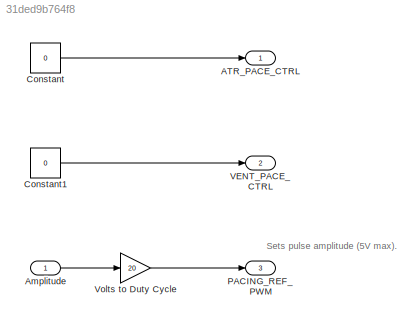
MODEL slx_31ded9b764f8
KIND model
CONFIG AbsTol = auto
CONFIG EnableMultiTasking = on
CONFIG FixedStep = 1e-3
CONFIG MaxStep = auto
CONFIG MinStep = auto
CONFIG RelTol = 1e-3
CONFIG SampleTimeConstraint = Unconstrained
CONFIG Solver = FixedStepAuto
CONFIG SolverName = FixedStepAuto
CONFIG StartTime = 0.0
CONFIG StopTime = 10.0
BLOCK [Outport] ATR_PACE_CTRL
BLOCK [Inport] Amplitude
  OutDataTypeStr = single
BLOCK [Constant] Constant
  Value = 0
BLOCK [Constant] Constant1
  Value = 0
BLOCK [Outport] PACING_REF_PWM
  Port = 3
BLOCK [Outport] VENT_PACE_CTRL
  Port = 2
BLOCK [Gain] Volts to Duty Cycle
  Gain = 20
ANNOTATION (root): Sets pulse amplitude (5V max).
LINE Amplitude:1 -> Volts to Duty Cycle:1
LINE Constant1:1 -> VENT_PACE_CTRL:1
LINE Constant:1 -> ATR_PACE_CTRL:1
LINE Volts to Duty Cycle:1 -> PACING_REF_PWM:1
